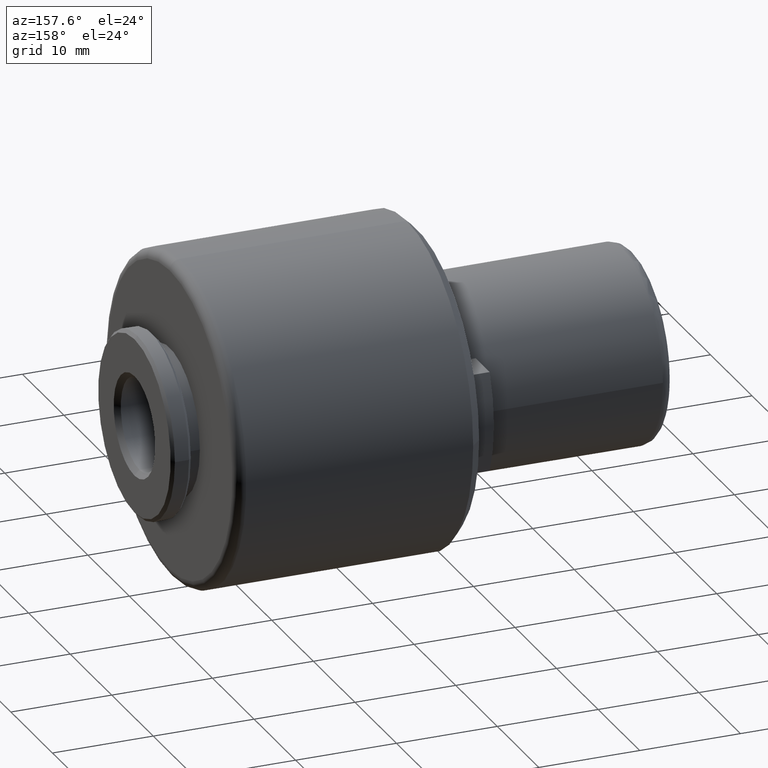
[diagram: clean part render]
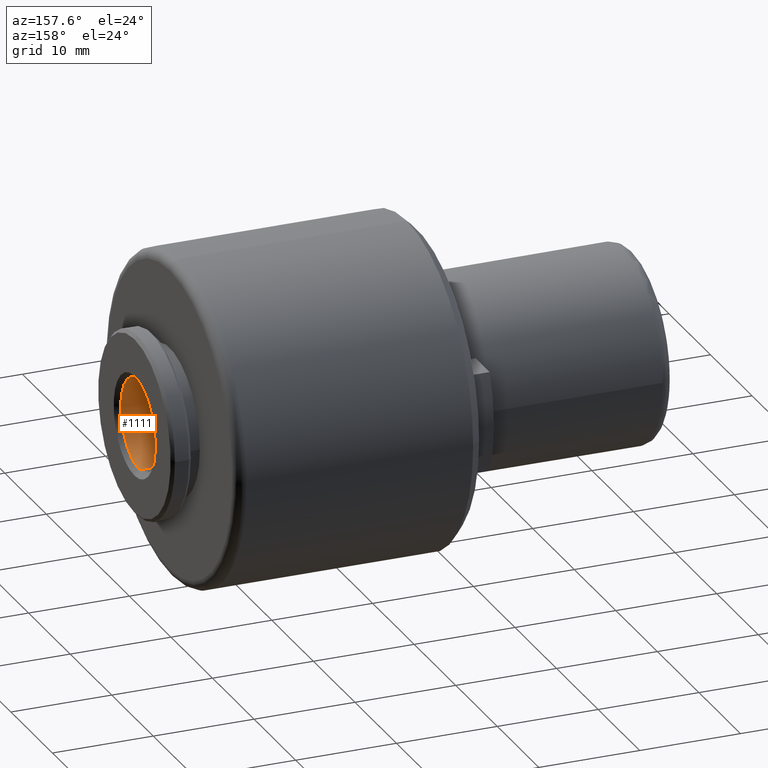
[diagram: same view with one face highlighted and labeled with its STEP entity id]
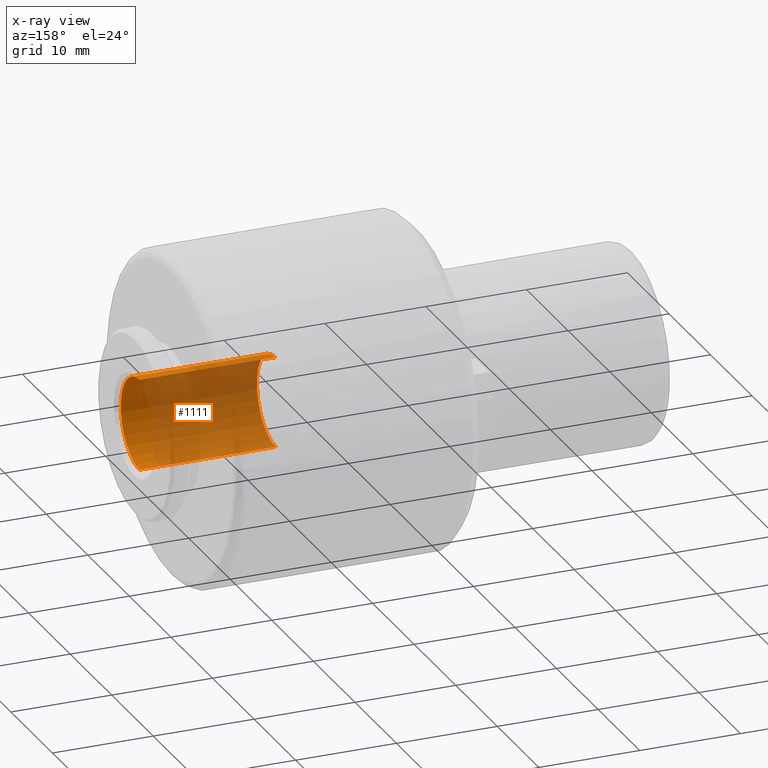
[diagram: x-ray of the same camera — body ghosted, the highlighted face saturated]
A machine part, auxiliary view. The second image highlights one B-rep face of the part: STEP entity #1111.
The next image is the same camera in x-ray: the body ghosted, the highlighted face saturated — about 80% of this face is hidden behind the body in this view.
In plain terms, the highlighted cylindrical surface (partial cylindrical patch) has radius 4.5 mm, axis along (1, -0, -0).
Its self-contained STEP definition (entity closure, byte-faithful):
#69 = ORIENTED_EDGE ( 'NONE', *, *, #582, .T. ) ;
#139 = VECTOR ( 'NONE', #499, 1000.000000000000000 ) ;
#158 = AXIS2_PLACEMENT_3D ( 'NONE', #314, #533, #824 ) ;
#163 = CARTESIAN_POINT ( 'NONE',  ( 49.00000000000011400, 0.0000000000000000000, 0.0000000000000000000 ) ) ;
#181 = CARTESIAN_POINT ( 'NONE',  ( 49.50000000000009900, 5.510910596163087600E-016, 4.499999999999999100 ) ) ;
#215 = VERTEX_POINT ( 'NONE', #218 ) ;
#218 = CARTESIAN_POINT ( 'NONE',  ( 35.50000000000009900, 5.510910596163086600E-016, 4.499999999999998200 ) ) ;
#225 = CIRCLE ( 'NONE', #781, 4.499999999999999100 ) ;
#250 = VECTOR ( 'NONE', #935, 1000.000000000000000 ) ;
#285 = CARTESIAN_POINT ( 'NONE',  ( 35.50000000000009900, 0.0000000000000000000, -4.499999999999998200 ) ) ;
#295 = CARTESIAN_POINT ( 'NONE',  ( 49.50000000000009900, 0.0000000000000000000, -4.499999999999999100 ) ) ;
#314 = CARTESIAN_POINT ( 'NONE',  ( 35.50000000000009900, 0.0000000000000000000, 0.0000000000000000000 ) ) ;
#418 = DIRECTION ( 'NONE',  ( 0.0000000000000000000, 0.0000000000000000000, 1.000000000000000000 ) ) ;
#440 = DIRECTION ( 'NONE',  ( 1.000000000000000000, -0.0000000000000000000, -0.0000000000000000000 ) ) ;
#443 = EDGE_CURVE ( 'NONE', #215, #1034, #639, .T. ) ;
#499 = DIRECTION ( 'NONE',  ( 1.000000000000000000, -0.0000000000000000000, -0.0000000000000000000 ) ) ;
#524 = LINE ( 'NONE', #295, #250 ) ;
#533 = DIRECTION ( 'NONE',  ( 1.000000000000000000, -0.0000000000000000000, -0.0000000000000000000 ) ) ;
#535 = CYLINDRICAL_SURFACE ( 'NONE', #1144, 4.499999999999999100 ) ;
#540 = CARTESIAN_POINT ( 'NONE',  ( 49.00000000000011400, 5.510910596163087600E-016, 4.499999999999999100 ) ) ;
#574 = EDGE_LOOP ( 'NONE', ( #1129, #721, #69, #939 ) ) ;
#582 = EDGE_CURVE ( 'NONE', #997, #791, #225, .T. ) ;
#621 = EDGE_CURVE ( 'NONE', #215, #997, #1013, .T. ) ;
#639 = CIRCLE ( 'NONE', #158, 4.499999999999998200 ) ;
#721 = ORIENTED_EDGE ( 'NONE', *, *, #621, .T. ) ;
#773 = DIRECTION ( 'NONE',  ( 0.0000000000000000000, 0.0000000000000000000, -1.000000000000000000 ) ) ;
#781 = AXIS2_PLACEMENT_3D ( 'NONE', #163, #1199, #418 ) ;
#790 = EDGE_CURVE ( 'NONE', #1034, #791, #524, .T. ) ;
#791 = VERTEX_POINT ( 'NONE', #803 ) ;
#803 = CARTESIAN_POINT ( 'NONE',  ( 49.00000000000011400, 0.0000000000000000000, -4.499999999999999100 ) ) ;
#824 = DIRECTION ( 'NONE',  ( 0.0000000000000000000, 0.0000000000000000000, -1.000000000000000000 ) ) ;
#907 = FACE_OUTER_BOUND ( 'NONE', #574, .T. ) ;
#935 = DIRECTION ( 'NONE',  ( 1.000000000000000000, -0.0000000000000000000, -0.0000000000000000000 ) ) ;
#939 = ORIENTED_EDGE ( 'NONE', *, *, #790, .F. ) ;
#997 = VERTEX_POINT ( 'NONE', #540 ) ;
#1013 = LINE ( 'NONE', #181, #139 ) ;
#1034 = VERTEX_POINT ( 'NONE', #285 ) ;
#1111 = ADVANCED_FACE ( 'NONE', ( #907 ), #535, .F. ) ;
#1129 = ORIENTED_EDGE ( 'NONE', *, *, #443, .F. ) ;
#1144 = AXIS2_PLACEMENT_3D ( 'NONE', #1231, #440, #773 ) ;
#1199 = DIRECTION ( 'NONE',  ( 1.000000000000000000, 0.0000000000000000000, 0.0000000000000000000 ) ) ;
#1231 = CARTESIAN_POINT ( 'NONE',  ( 49.50000000000009900, 0.0000000000000000000, 0.0000000000000000000 ) ) ;